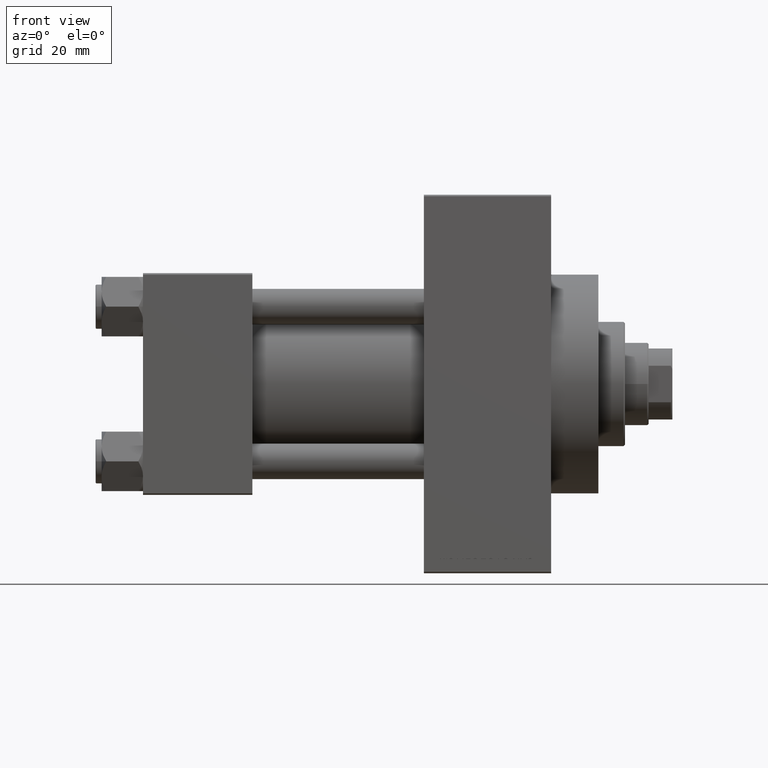
[diagram: clean part render]
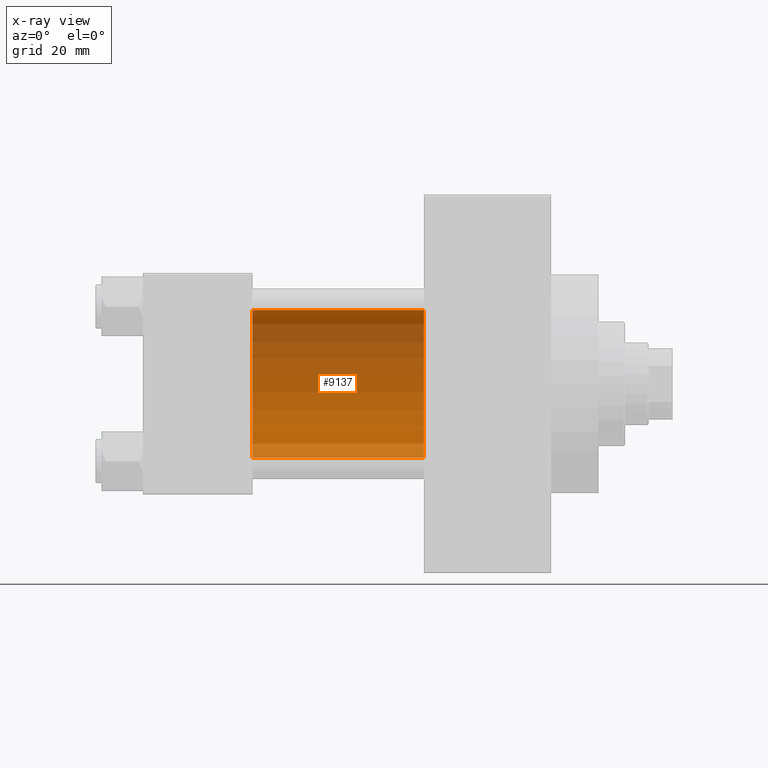
[diagram: x-ray — body ghosted, one internal face saturated and labeled with its STEP entity id]
A machine part, front view, then the same camera in x-ray: the body is ghosted and one INTERNAL B-rep face — a face not visible from any outside direction — is saturated and labeled: STEP entity #9137.
In plain terms, the highlighted cylindrical surface (partial cylindrical patch) has radius 25 mm, axis along (-1, -0, -0).
Its self-contained STEP definition (entity closure, byte-faithful):
#1205 = CYLINDRICAL_SURFACE ( 'NONE', #3547, 25.00000000000000000 ) ;
#1650 = VERTEX_POINT ( 'NONE', #26162 ) ;
#3014 = VERTEX_POINT ( 'NONE', #26591 ) ;
#3140 = ORIENTED_EDGE ( 'NONE', *, *, #33693, .T. ) ;
#3547 = AXIS2_PLACEMENT_3D ( 'NONE', #44012, #46991, #32613 ) ;
#5460 = CARTESIAN_POINT ( 'NONE',  ( 95.00000000000000000, 4.595317839031718093E-16, -25.00000000000000000 ) ) ;
#6014 = CARTESIAN_POINT ( 'NONE',  ( 95.00000000000000000, -2.602085213965210642E-15, 0.000000000000000000 ) ) ;
#8671 = EDGE_CURVE ( 'NONE', #3014, #17996, #38304, .T. ) ;
#8836 = VECTOR ( 'NONE', #27466, 1000.000000000000000 ) ;
#9038 = DIRECTION ( 'NONE',  ( -1.000000000000000000, -0.000000000000000000, -0.000000000000000000 ) ) ;
#9137 = ADVANCED_FACE ( 'NONE', ( #19238 ), #1205, .F. ) ;
#11538 = CARTESIAN_POINT ( 'NONE',  ( 37.00000000000000000, -2.602085213965210642E-15, 25.00000000000000000 ) ) ;
#12928 = DIRECTION ( 'NONE',  ( 1.000000000000000000, 0.000000000000000000, 0.000000000000000000 ) ) ;
#15333 = EDGE_CURVE ( 'NONE', #1650, #17996, #24595, .T. ) ;
#15905 = CARTESIAN_POINT ( 'NONE',  ( 95.00000000000000000, 4.595317839031718093E-16, -25.00000000000000000 ) ) ;
#16575 = CIRCLE ( 'NONE', #46641, 25.00000000000000000 ) ;
#17820 = ORIENTED_EDGE ( 'NONE', *, *, #28330, .F. ) ;
#17996 = VERTEX_POINT ( 'NONE', #11538 ) ;
#18271 = VERTEX_POINT ( 'NONE', #15905 ) ;
#19238 = FACE_OUTER_BOUND ( 'NONE', #30702, .T. ) ;
#24308 = DIRECTION ( 'NONE',  ( 0.000000000000000000, 0.000000000000000000, -1.000000000000000000 ) ) ;
#24595 = LINE ( 'NONE', #31800, #24962 ) ;
#24827 = AXIS2_PLACEMENT_3D ( 'NONE', #44945, #38733, #46154 ) ;
#24962 = VECTOR ( 'NONE', #9038, 1000.000000000000000 ) ;
#26162 = CARTESIAN_POINT ( 'NONE',  ( 95.00000000000000000, -2.602085213965210642E-15, 25.00000000000000000 ) ) ;
#26591 = CARTESIAN_POINT ( 'NONE',  ( 37.00000000000000000, 4.595317839031718093E-16, -25.00000000000000000 ) ) ;
#27466 = DIRECTION ( 'NONE',  ( -1.000000000000000000, -0.000000000000000000, -0.000000000000000000 ) ) ;
#28330 = EDGE_CURVE ( 'NONE', #18271, #3014, #38619, .T. ) ;
#30702 = EDGE_LOOP ( 'NONE', ( #17820, #3140, #39097, #38094 ) ) ;
#31800 = CARTESIAN_POINT ( 'NONE',  ( 95.00000000000000000, -2.602085213965210642E-15, 25.00000000000000000 ) ) ;
#32613 = DIRECTION ( 'NONE',  ( 0.000000000000000000, 0.000000000000000000, 1.000000000000000000 ) ) ;
#33693 = EDGE_CURVE ( 'NONE', #18271, #1650, #16575, .T. ) ;
#38094 = ORIENTED_EDGE ( 'NONE', *, *, #8671, .F. ) ;
#38304 = CIRCLE ( 'NONE', #24827, 25.00000000000000000 ) ;
#38619 = LINE ( 'NONE', #5460, #8836 ) ;
#38733 = DIRECTION ( 'NONE',  ( 1.000000000000000000, 0.000000000000000000, 0.000000000000000000 ) ) ;
#39097 = ORIENTED_EDGE ( 'NONE', *, *, #15333, .T. ) ;
#44012 = CARTESIAN_POINT ( 'NONE',  ( 95.00000000000000000, -2.602085213965210642E-15, 0.000000000000000000 ) ) ;
#44945 = CARTESIAN_POINT ( 'NONE',  ( 37.00000000000000000, -2.602085213965210642E-15, 0.000000000000000000 ) ) ;
#46154 = DIRECTION ( 'NONE',  ( 0.000000000000000000, 0.000000000000000000, -1.000000000000000000 ) ) ;
#46641 = AXIS2_PLACEMENT_3D ( 'NONE', #6014, #12928, #24308 ) ;
#46991 = DIRECTION ( 'NONE',  ( -1.000000000000000000, -0.000000000000000000, -0.000000000000000000 ) ) ;